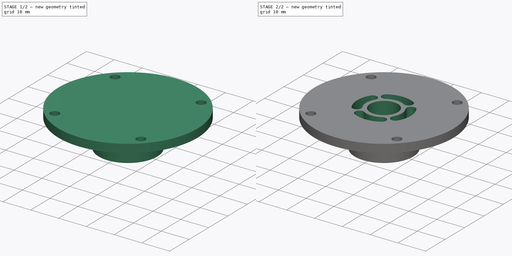
[diagram: build sequence overview — one tinted view per stage of 2, left to right]
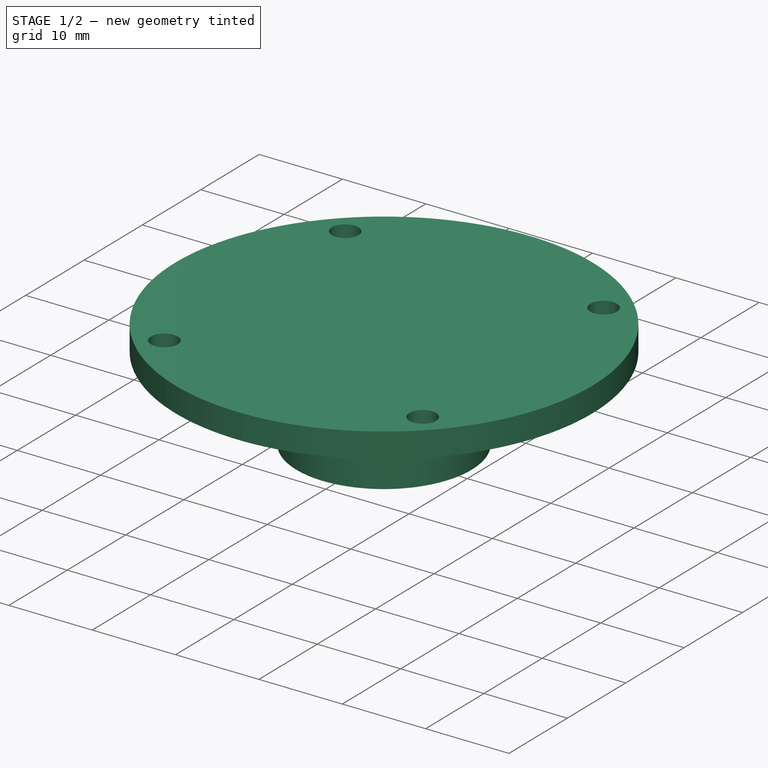
[diagram: stage 1 of 2 — iso view after this stage's code; geometry added in this stage tinted green]
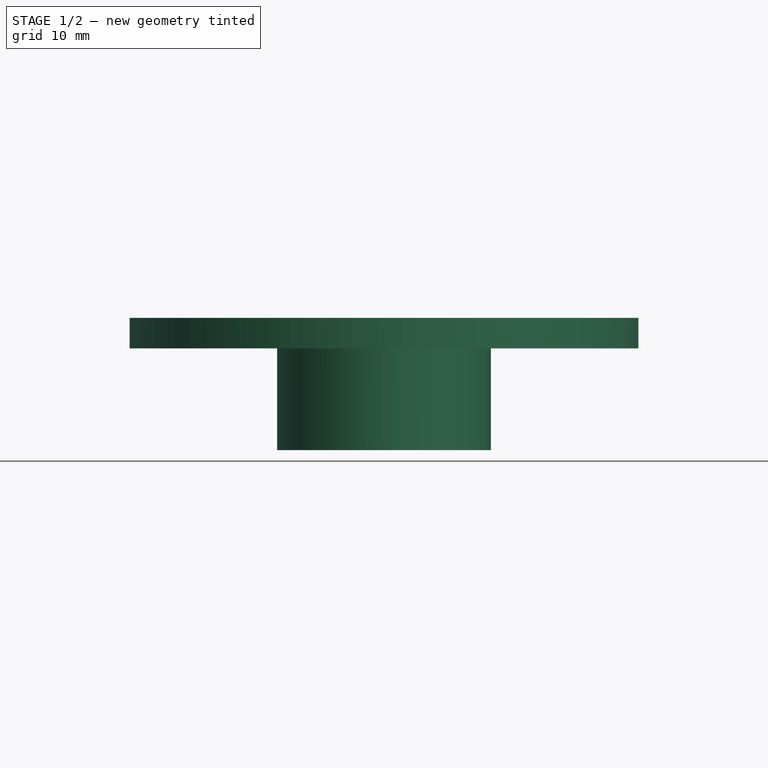
[diagram: stage 1 of 2 — front view after this stage's code; geometry added in this stage tinted green]
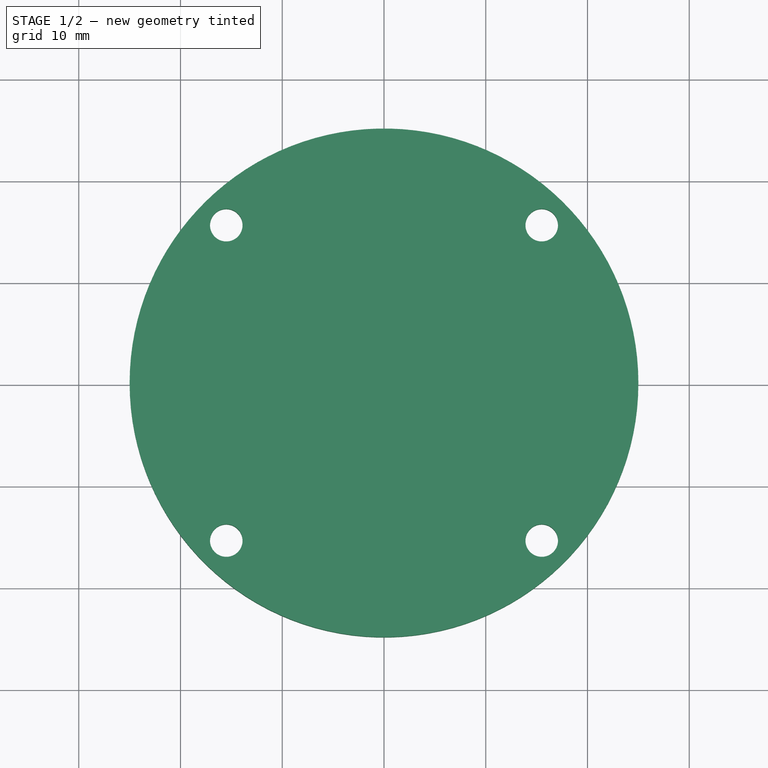
[diagram: stage 1 of 2 — top view after this stage's code; geometry added in this stage tinted green]
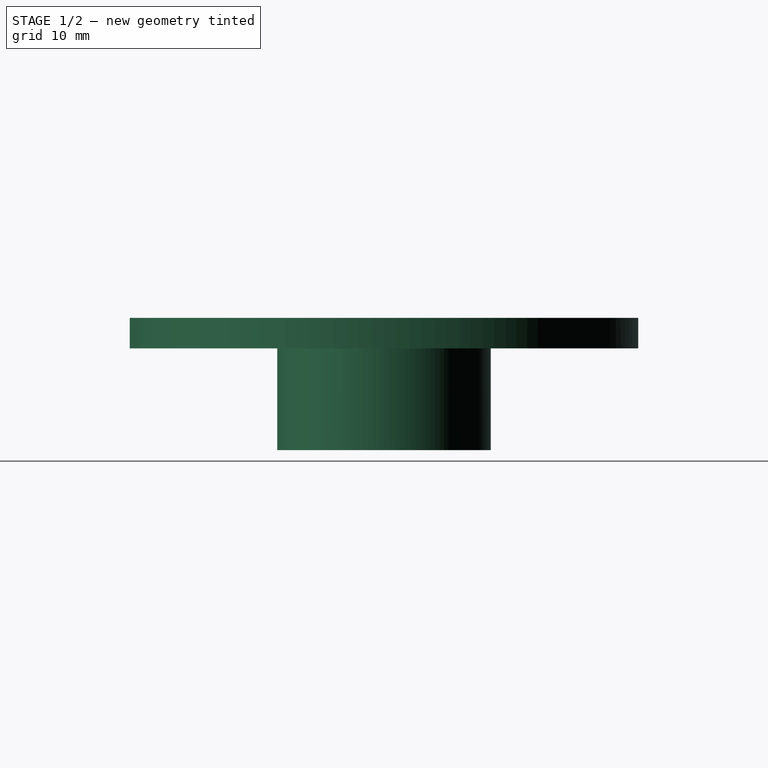
[diagram: stage 1 of 2 — right view after this stage's code; geometry added in this stage tinted green]
FCSTD DOCUMENT  (FreeCAD 0.19R24276 (Git))
Label: Support_up_screw
License: All rights reserved
LicenseURL: http://en.wikipedia.org/wiki/All_rights_reserved
objects: Sketcher::SketchObject×4, PartDesign::Pad×2, PartDesign::Pocket×2, PartDesign::Body×1
note: 13 computed .brp shape members not serialized (recipe doc carries the construction recipe); baked Part::Feature solids carry a one-line shape summary decoded from their .brp

FEATURE [Sketcher::SketchObject] Sketch  label="Sketch_d21"
  FullyConstrained = true
  MapMode = 5
  Support = -> [XY_Plane]
  sketch-geometry (2):
    g0: Circle CenterX=0 CenterY=0 CenterZ=0 NormalX=0 NormalY=0 NormalZ=1 AngleXU=0 Radius=5
    g1: Circle CenterX=0 CenterY=0 CenterZ=0 NormalX=0 NormalY=0 NormalZ=1 AngleXU=0 Radius=10.5
  constraints (4):
    c: Coincident(g0,g-1)
    c: Coincident(g1,g-1)
    c: Diameter(g1) = 21
    c: Diameter(g0) = 10
FEATURE [PartDesign::Pad] Pad  label="Pad_h10"
  Direction = (1,1,1)
  Length = 10
  Length2 = 100
  Profile = -> Sketch
  Type = 0
FEATURE [Sketcher::SketchObject] Sketch001  label="Sketch001_L31_4xOtv_d3,2_d50"
  FullyConstrained = true
  MapMode = 5
  Placement = pos=(0,0,10) rot=(0,0,1;0rad)
  Support = -> [Pad]
  sketch-geometry (10):
    g0: LineSegment StartX=15.5 StartY=15.5 StartZ=0 EndX=-15.5 EndY=15.5 EndZ=0
    g1: LineSegment StartX=-15.5 StartY=15.5 StartZ=0 EndX=-15.5 EndY=-15.5 EndZ=0
    g2: LineSegment StartX=-15.5 StartY=-15.5 StartZ=0 EndX=15.5 EndY=-15.5 EndZ=0
    g3: LineSegment StartX=15.5 StartY=-15.5 StartZ=0 EndX=15.5 EndY=15.5 EndZ=0
    g4: Circle CenterX=0 CenterY=0 CenterZ=0 NormalX=0 NormalY=0 NormalZ=1 AngleXU=0 Radius=21.9203
    g5: Circle CenterX=-15.5 CenterY=-15.5 CenterZ=0 NormalX=0 NormalY=0 NormalZ=1 AngleXU=0 Radius=1.6
    g6: Circle CenterX=15.5 CenterY=-15.5 CenterZ=0 NormalX=0 NormalY=0 NormalZ=1 AngleXU=0 Radius=1.6
    g7: Circle CenterX=15.5 CenterY=15.5 CenterZ=0 NormalX=0 NormalY=0 NormalZ=1 AngleXU=0 Radius=1.6
    g8: Circle CenterX=-15.5 CenterY=15.5 CenterZ=0 NormalX=0 NormalY=0 NormalZ=1 AngleXU=0 Radius=1.6
    g9: Circle CenterX=0 CenterY=0 CenterZ=0 NormalX=0 NormalY=0 NormalZ=1 AngleXU=0 Radius=25
  constraints (24):
    c: Coincident(g0,g1)
    c: Coincident(g1,g2)
    c: Coincident(g2,g3)
    c: Coincident(g3,g0)
    c: Equal(g0,g1)
    c: Equal(g0,g2)
    c: Equal(g0,g3)
    c: PointOnObject(g0,g4)
    c: PointOnObject(g1,g4)
    c: PointOnObject(g2,g4)
    c: PointOnObject(g3,g4)
    c: Coincident(g4,g-1)
    c: Horizontal(g2)
    c: DistanceX(g2,g2) = 31
    c: Coincident(g5,g1)
    c: Coincident(g6,g2)
    c: Coincident(g7,g0)
    c: Coincident(g8,g0)
    c: Diameter(g8) = 3.2
    c: Equal(g8,g5)
    c: Equal(g8,g6)
    c: Equal(g8,g7)
    c: Coincident(g9,g-1)
    c: Diameter(g9) = 50
FEATURE [PartDesign::Pad] Pad001  label="Pad001_h3"
  BaseFeature = -> Pad
  Direction = (1,1,1)
  Length = 3
  Length2 = 100
  Profile = -> Sketch001
  Type = 0
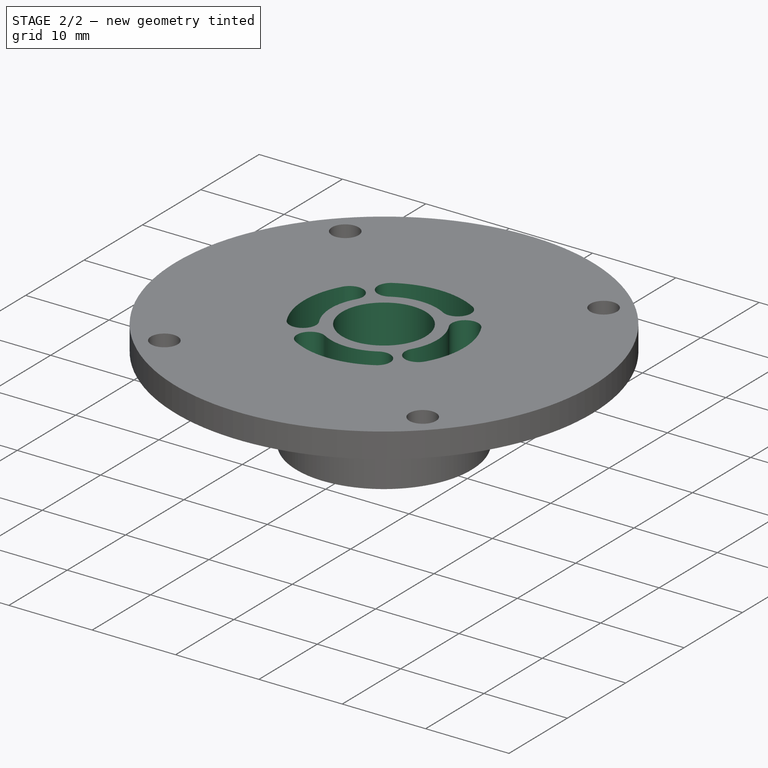
[diagram: stage 2 of 2 — iso view after this stage's code; geometry added in this stage tinted green]
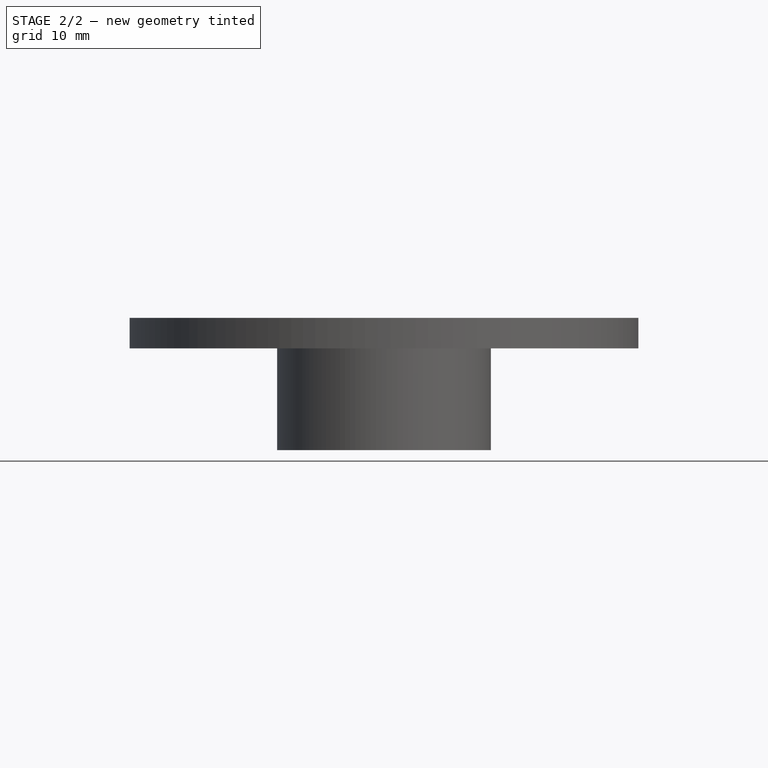
[diagram: stage 2 of 2 — front view after this stage's code; geometry added in this stage tinted green]
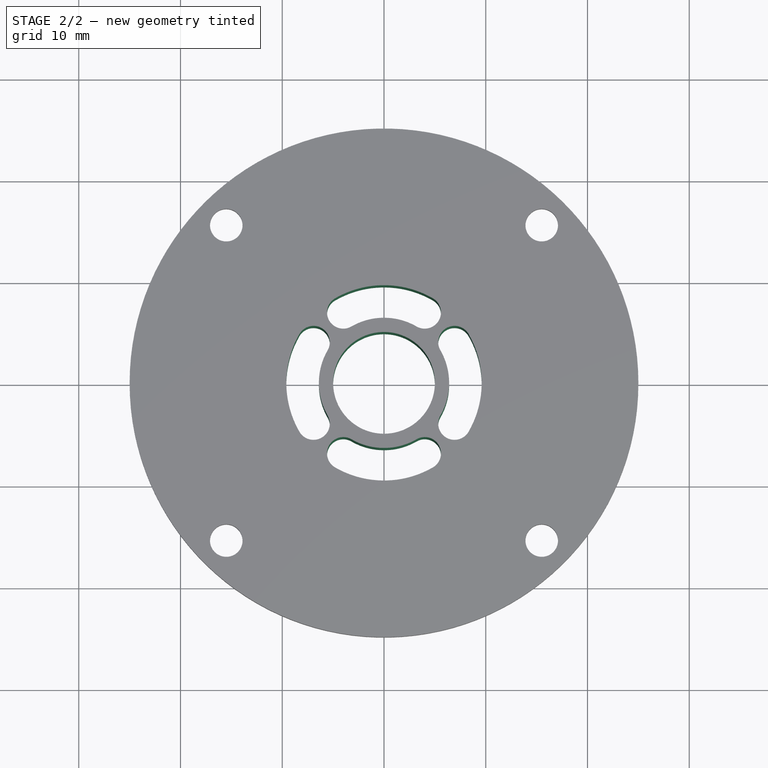
[diagram: stage 2 of 2 — top view after this stage's code; geometry added in this stage tinted green]
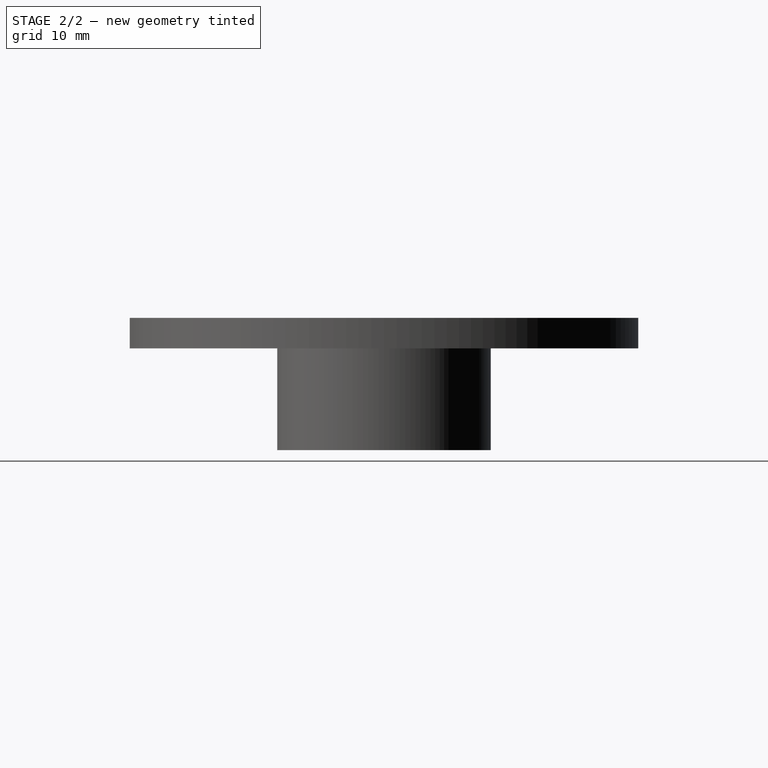
[diagram: stage 2 of 2 — right view after this stage's code; geometry added in this stage tinted green]
FEATURE [Sketcher::SketchObject] Sketch002
  FullyConstrained = true
  MapMode = 5
  Placement = pos=(0,0,13) rot=(0,0,1;0rad)
  Support = -> [Pad001]
  sketch-geometry (1):
    g0: Circle CenterX=0 CenterY=0 CenterZ=0 NormalX=0 NormalY=0 NormalZ=1 AngleXU=0 Radius=5
  constraints (2):
    c: Coincident(g0,g-1)
    c: Diameter(g0) = 10
FEATURE [PartDesign::Pocket] Pocket
  BaseFeature = -> Pad001
  Length = 5
  Length2 = 100
  Profile = -> Sketch002
  Type = 1
FEATURE [Sketcher::SketchObject] Sketch003
  FullyConstrained = false
  MapMode = 5
  Placement = pos=(0,0,13) rot=(0,0,1;0rad)
  Support = -> [Pocket]
  sketch-geometry (30):
    g0: LineSegment StartX=0 StartY=8 StartZ=0 EndX=-4 EndY=6.9282 EndZ=0
    g1: LineSegment StartX=-4 StartY=6.9282 StartZ=0 EndX=-6.9282 EndY=4 EndZ=0
    g2: LineSegment StartX=-6.9282 StartY=4 StartZ=0 EndX=-8 EndY=0 EndZ=0
    g3: LineSegment StartX=-8 StartY=0 StartZ=0 EndX=-6.9282 EndY=-4 EndZ=0
    g4: LineSegment StartX=-6.9282 StartY=-4 StartZ=0 EndX=-4 EndY=-6.9282 EndZ=0
    g5: LineSegment StartX=-4 StartY=-6.9282 StartZ=0 EndX=0 EndY=-8 EndZ=0
    g6: LineSegment StartX=0 StartY=-8 StartZ=0 EndX=4 EndY=-6.9282 EndZ=0
    g7: LineSegment StartX=4 StartY=-6.9282 StartZ=0 EndX=6.9282 EndY=-4 EndZ=0
    g8: LineSegment StartX=6.9282 StartY=-4 StartZ=0 EndX=8 EndY=0 EndZ=0
    g9: LineSegment StartX=8 StartY=0 StartZ=0 EndX=6.9282 EndY=4 EndZ=0
    g10: LineSegment StartX=6.9282 StartY=4 StartZ=0 EndX=4 EndY=6.9282 EndZ=0
    g11: LineSegment StartX=4 StartY=6.9282 StartZ=0 EndX=0 EndY=8 EndZ=0
    g12: Circle CenterX=0 CenterY=0 CenterZ=0 NormalX=0 NormalY=0 NormalZ=1 AngleXU=0 Radius=8
    g13: Circle CenterX=0 CenterY=8 CenterZ=0 NormalX=0 NormalY=0 NormalZ=1 AngleXU=0 Radius=1.6
    g14: ArcOfCircle CenterX=4 CenterY=6.9282 CenterZ=0 NormalX=0 NormalY=0 NormalZ=1 AngleXU=0 Radius=1.6 StartAngle=4.18879 EndAngle=7.33038
    g15: ArcOfCircle CenterX=6.9282 CenterY=4 CenterZ=0 NormalX=0 NormalY=0 NormalZ=1 AngleXU=0 Radius=1.6 StartAngle=0.523599 EndAngle=3.66519
    g16: ArcOfCircle CenterX=-4 CenterY=6.9282 CenterZ=0 NormalX=0 NormalY=0 NormalZ=1 AngleXU=0 Radius=1.6 StartAngle=2.0944 EndAngle=5.23599
    g17: ArcOfCircle CenterX=-6.9282 CenterY=4 CenterZ=0 NormalX=0 NormalY=0 NormalZ=1 AngleXU=0 Radius=1.6 StartAngle=5.75959 EndAngle=8.90118
    g18: ArcOfCircle CenterX=0 CenterY=0 CenterZ=0 NormalX=0 NormalY=0 NormalZ=1 AngleXU=0 Radius=6.4 StartAngle=1.0472 EndAngle=2.0944
    g19: ArcOfCircle CenterX=0 CenterY=0 CenterZ=0 NormalX=0 NormalY=0 NormalZ=1 AngleXU=0 Radius=9.6 StartAngle=1.0472 EndAngle=2.0944
    g20: ArcOfCircle CenterX=0 CenterY=0 CenterZ=0 NormalX=0 NormalY=0 NormalZ=1 AngleXU=0 Radius=6.4 StartAngle=2.61799 EndAngle=3.66519
    g21: ArcOfCircle CenterX=0 CenterY=0 CenterZ=0 NormalX=0 NormalY=0 NormalZ=1 AngleXU=0 Radius=9.6 StartAngle=2.61799 EndAngle=3.66519
    g22: ArcOfCircle CenterX=-6.9282 CenterY=-4 CenterZ=0 NormalX=0 NormalY=0 NormalZ=1 AngleXU=0 Radius=1.6 StartAngle=3.66519 EndAngle=6.80678
    g23: ArcOfCircle CenterX=0 CenterY=0 CenterZ=0 NormalX=0 NormalY=0 NormalZ=1 AngleXU=0 Radius=6.4 StartAngle=5.75959 EndAngle=6.80678
    g24: ArcOfCircle CenterX=0 CenterY=0 CenterZ=0 NormalX=0 NormalY=0 NormalZ=1 AngleXU=0 Radius=9.6 StartAngle=5.75959 EndAngle=6.80678
    g25: ArcOfCircle CenterX=6.9282 CenterY=-4 CenterZ=0 NormalX=0 NormalY=0 NormalZ=1 AngleXU=0 Radius=1.6 StartAngle=2.61799 EndAngle=5.75959
    g26: ArcOfCircle CenterX=4 CenterY=-6.9282 CenterZ=0 NormalX=0 NormalY=0 NormalZ=1 AngleXU=0 Radius=1.6 StartAngle=5.23599 EndAngle=8.37758
    g27: ArcOfCircle CenterX=0 CenterY=0 CenterZ=0 NormalX=0 NormalY=0 NormalZ=1 AngleXU=0 Radius=6.4 StartAngle=4.18879 EndAngle=5.23599
    g28: ArcOfCircle CenterX=0 CenterY=0 CenterZ=0 NormalX=0 NormalY=0 NormalZ=1 AngleXU=0 Radius=9.6 StartAngle=4.18879 EndAngle=5.23599
    g29: ArcOfCircle CenterX=-4 CenterY=-6.9282 CenterZ=0 NormalX=0 NormalY=0 NormalZ=1 AngleXU=0 Radius=1.6 StartAngle=1.0472 EndAngle=4.18879
  constraints (71):
    c: Coincident(g0,g1)
    c: Coincident(g1,g2)
    c: Coincident(g2,g3)
    c: Coincident(g3,g4)
    c: Coincident(g4,g5)
    c: Coincident(g5,g6)
    c: Coincident(g6,g7)
    c: Coincident(g7,g8)
    c: Coincident(g8,g9)
    c: Coincident(g9,g10)
    c: Coincident(g10,g11)
    c: Coincident(g11,g0)
    c: Equal(g0, g1-g11) x11
    c: PointOnObject(g0,g12)
    c: PointOnObject(g1,g12)
    c: PointOnObject(g2,g12)
    c: PointOnObject(g3,g12)
    c: PointOnObject(g4,g12)
    c: PointOnObject(g5,g12)
    c: PointOnObject(g6,g12)
    c: PointOnObject(g7,g12)
    c: PointOnObject(g8,g12)
    c: PointOnObject(g9,g12)
    c: PointOnObject(g10,g12)
    c: PointOnObject(g11,g12)
    c: Coincident(g12,g-1)
    c: PointOnObject(g11,g-2)
    c: Diameter(g12) = 16
    c: Coincident(g13,g0)
    c: Diameter(g13) = 3.2
    c: Coincident(g14,g10)
    c: Coincident(g15,g9)
    c: Coincident(g16,g0)
    c: Coincident(g17,g1)
    c: Equal(g15,g13)
    c: Equal(g13,g16)
    c: Equal(g16,g17)
    c: Coincident(g18,g-1)
    c: Diameter(g18) = 12.8
    c: Coincident(g19,g-1)
    c: Diameter(g19) = 19.2
    c: Equal(g14,g15)
    c: Equal(g18,g20)
    c: Coincident(g18,g20)
    c: Equal(g19,g21)
    c: Coincident(g19,g21)
    c: Coincident(g14,g18)
    c: Coincident(g14,g19)
    c: Coincident(g16,g19)
    c: Coincident(g16,g18)
    c: Coincident(g22,g3)
    c: Equal(g20,g23)
    c: Coincident(g20,g23)
    c: Equal(g21,g24)
    c: Coincident(g21,g24)
    c: Coincident(g25,g24)
    c: Coincident(g25,g23)
    c: Coincident(g15,g24)
    c: Coincident(g15,g23)
    c: Coincident(g26,g27)
    c: Coincident(g26,g28)
    c: Equal(g20,g27)
    c: Coincident(g20,g27)
    c: Equal(g21,g28)
    c: Coincident(g21,g28)
    c: Coincident(g29,g28)
    c: Coincident(g29,g27)
    c: Coincident(g22,g20)
    c: Coincident(g22,g21)
    c: Coincident(g17,g20)
    c: Coincident(g17,g21)
FEATURE [PartDesign::Pocket] Pocket001
  BaseFeature = -> Pocket
  Length = 5
  Length2 = 100
  Profile = -> Sketch003
  Type = 1
FEATURE [PartDesign::Body] Body
  Group = -> [Sketch,Pad,Sketch001,Pad001,Sketch002,Pocket,Sketch003,Pocket001]
  Origin = -> Origin
  Tip = -> Pocket001
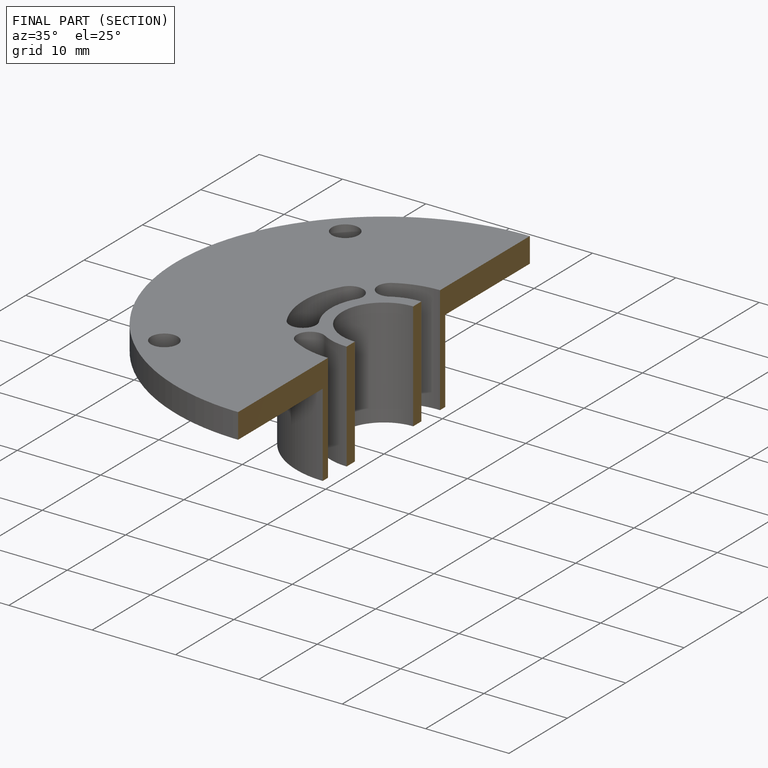
[diagram: finished part — half-section view (interior)]
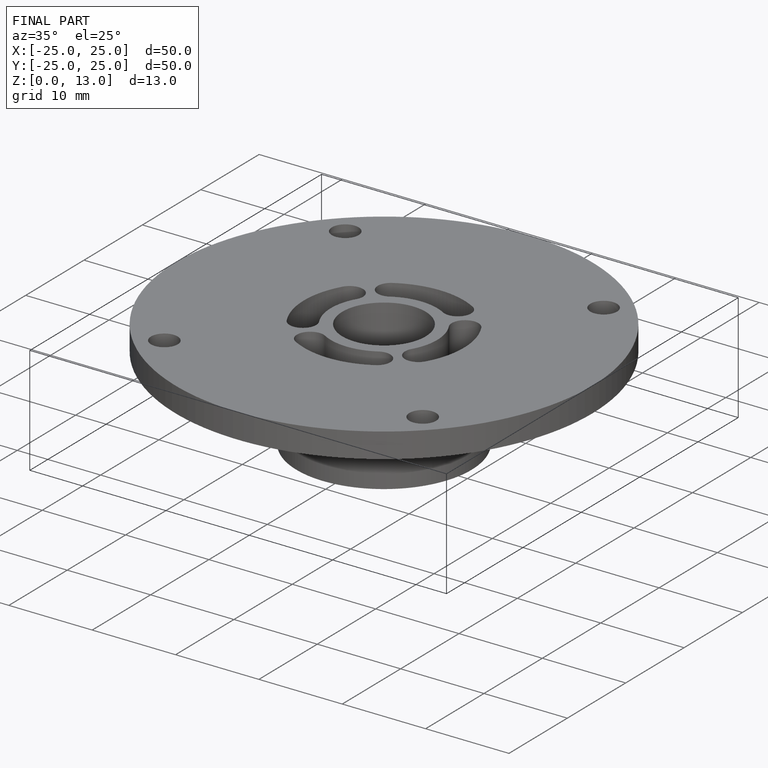
[diagram: finished part — iso view with bounding-box wireframe]
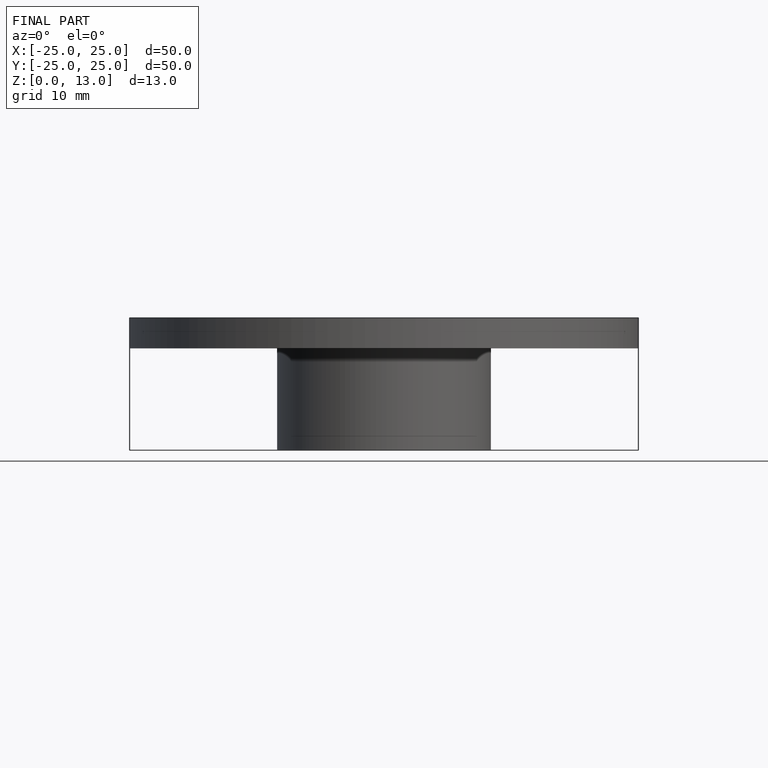
[diagram: finished part — front view with bounding-box wireframe]
